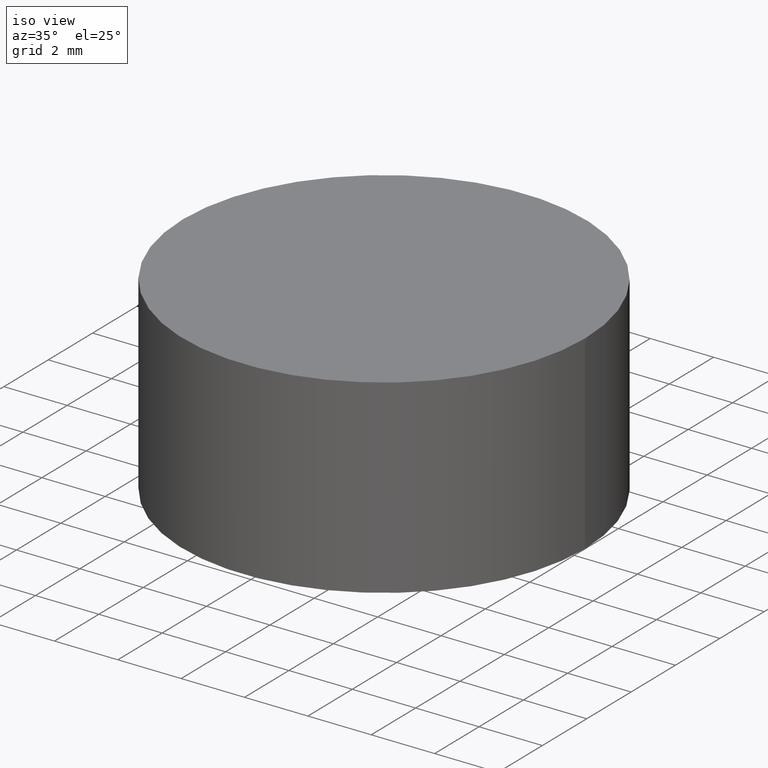
[diagram: clean part render]
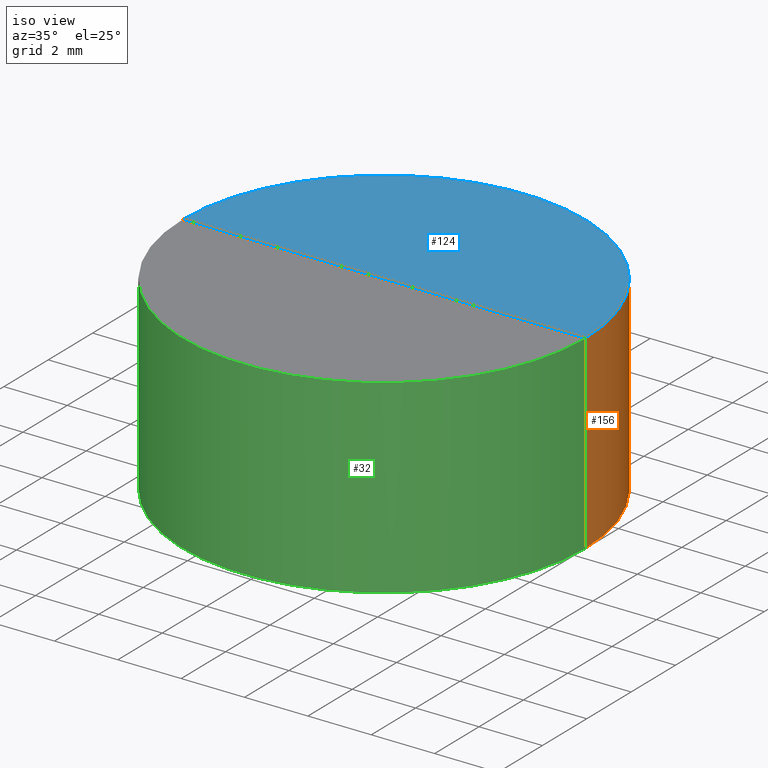
[diagram: same view with three faces highlighted in distinct colors, each labeled with its STEP entity id]
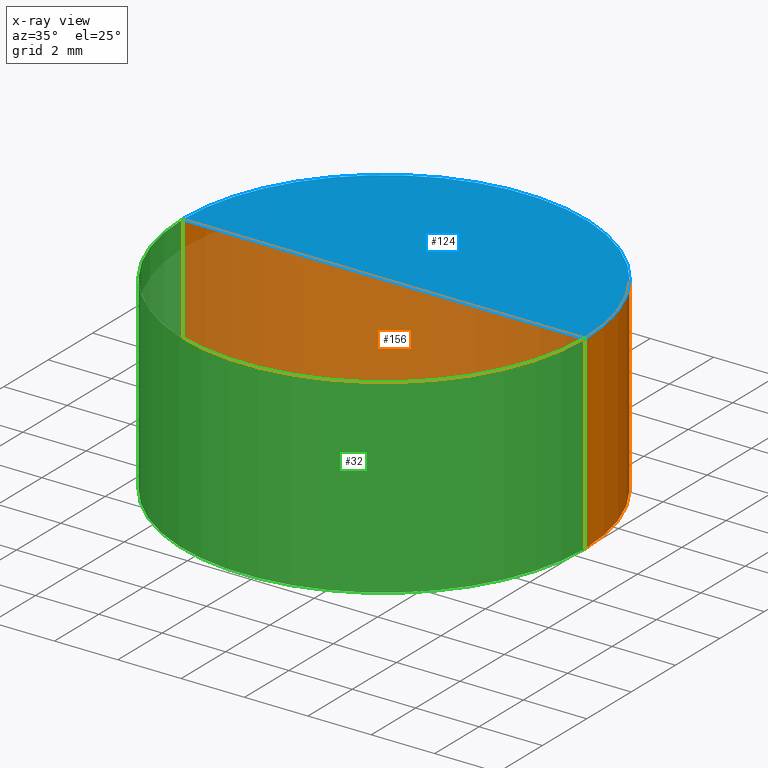
[diagram: x-ray of the same camera — body ghosted, the three highlighted faces saturated]
A machine part, iso view with three faces highlighted in distinct colors.
The next image is the same camera in x-ray (body ghosted, the three faces saturated) — at least one of them is partly hidden behind the body in this view.
Their STEP definitions:

[orange] entity #156 — the highlighted cylindrical surface (partial cylindrical patch) has radius 6.35 mm, axis along (-0, -0, -1).
#2 = DIRECTION ( 'NONE',  ( -0.000000000000000000, -0.000000000000000000, -1.000000000000000000 ) ) ;
#4 = CARTESIAN_POINT ( 'NONE',  ( -6.349999999999999645, 0.000000000000000000, 6.000000000000000000 ) ) ;
#15 = DIRECTION ( 'NONE',  ( -0.000000000000000000, -0.000000000000000000, -1.000000000000000000 ) ) ;
#18 = LINE ( 'NONE', #4, #100 ) ;
#25 = DIRECTION ( 'NONE',  ( 1.000000000000000000, 0.000000000000000000, 0.000000000000000000 ) ) ;
#30 = DIRECTION ( 'NONE',  ( 1.000000000000000000, 0.000000000000000000, 0.000000000000000000 ) ) ;
#37 = VERTEX_POINT ( 'NONE', #40 ) ;
#40 = CARTESIAN_POINT ( 'NONE',  ( 6.349999999999999645, 7.776507174585692163E-16, 0.000000000000000000 ) ) ;
#41 = DIRECTION ( 'NONE',  ( -0.000000000000000000, -0.000000000000000000, -1.000000000000000000 ) ) ;
#45 = CARTESIAN_POINT ( 'NONE',  ( -6.350000000023290347, 0.000000000000000000, 5.999999999999783284 ) ) ;
#47 = EDGE_CURVE ( 'NONE', #126, #37, #62, .T. ) ;
#49 = ORIENTED_EDGE ( 'NONE', *, *, #168, .T. ) ;
#54 = ORIENTED_EDGE ( 'NONE', *, *, #47, .T. ) ;
#62 = LINE ( 'NONE', #180, #144 ) ;
#63 = AXIS2_PLACEMENT_3D ( 'NONE', #105, #108, #25 ) ;
#67 = EDGE_CURVE ( 'NONE', #37, #122, #107, .T. ) ;
#68 = VERTEX_POINT ( 'NONE', #45 ) ;
#92 = AXIS2_PLACEMENT_3D ( 'NONE', #171, #15, #30 ) ;
#95 = CARTESIAN_POINT ( 'NONE',  ( 0.000000000000000000, 0.000000000000000000, 6.000000000000000000 ) ) ;
#100 = VECTOR ( 'NONE', #142, 1000.000000000000000 ) ;
#101 = ORIENTED_EDGE ( 'NONE', *, *, #67, .T. ) ;
#105 = CARTESIAN_POINT ( 'NONE',  ( 0.000000000000000000, 0.000000000000000000, 0.000000000000000000 ) ) ;
#107 = CIRCLE ( 'NONE', #63, 6.349999999999999645 ) ;
#108 = DIRECTION ( 'NONE',  ( 0.000000000000000000, 0.000000000000000000, 1.000000000000000000 ) ) ;
#119 = DIRECTION ( 'NONE',  ( -1.000000000000000000, 0.000000000000000000, 0.000000000000000000 ) ) ;
#120 = CYLINDRICAL_SURFACE ( 'NONE', #136, 6.349999999999999645 ) ;
#122 = VERTEX_POINT ( 'NONE', #201 ) ;
#126 = VERTEX_POINT ( 'NONE', #198 ) ;
#136 = AXIS2_PLACEMENT_3D ( 'NONE', #95, #2, #119 ) ;
#142 = DIRECTION ( 'NONE',  ( -0.000000000000000000, -0.000000000000000000, -1.000000000000000000 ) ) ;
#143 = EDGE_CURVE ( 'NONE', #68, #122, #18, .T. ) ;
#144 = VECTOR ( 'NONE', #41, 1000.000000000000000 ) ;
#156 = ADVANCED_FACE ( 'NONE', ( #169 ), #120, .T. ) ;
#158 = EDGE_LOOP ( 'NONE', ( #49, #54, #101, #162 ) ) ;
#162 = ORIENTED_EDGE ( 'NONE', *, *, #143, .F. ) ;
#168 = EDGE_CURVE ( 'NONE', #68, #126, #182, .T. ) ;
#169 = FACE_OUTER_BOUND ( 'NONE', #158, .T. ) ;
#171 = CARTESIAN_POINT ( 'NONE',  ( 3.694961003830599111E-13, 0.000000000000000000, 5.999999999999783284 ) ) ;
#180 = CARTESIAN_POINT ( 'NONE',  ( 6.349999999999999645, 7.776507174585692163E-16, 6.000000000000000000 ) ) ;
#182 = CIRCLE ( 'NONE', #92, 6.350000000023658941 ) ;
#198 = CARTESIAN_POINT ( 'NONE',  ( 6.350000000024028424, 7.776507174615119633E-16, 5.999999999999783284 ) ) ;
#201 = CARTESIAN_POINT ( 'NONE',  ( -6.349999999999999645, 0.000000000000000000, 0.000000000000000000 ) ) ;

[blue] entity #124 — the highlighted spherical surface has radius 3000 mm.
#15 = DIRECTION ( 'NONE',  ( -0.000000000000000000, -0.000000000000000000, -1.000000000000000000 ) ) ;
#20 = ORIENTED_EDGE ( 'NONE', *, *, #44, .T. ) ;
#29 = CARTESIAN_POINT ( 'NONE',  ( 5.531931202551628353E-13, 0.000000000000000000, 5.993279575805754433 ) ) ;
#30 = DIRECTION ( 'NONE',  ( 1.000000000000000000, 0.000000000000000000, 0.000000000000000000 ) ) ;
#34 = ORIENTED_EDGE ( 'NONE', *, *, #168, .F. ) ;
#44 = EDGE_CURVE ( 'NONE', #68, #73, #173, .T. ) ;
#45 = CARTESIAN_POINT ( 'NONE',  ( -6.350000000023290347, 0.000000000000000000, 5.999999999999783284 ) ) ;
#60 = SPHERICAL_SURFACE ( 'NONE', #165, 3000.000000000000000 ) ;
#61 = AXIS2_PLACEMENT_3D ( 'NONE', #82, #185, #139 ) ;
#68 = VERTEX_POINT ( 'NONE', #45 ) ;
#73 = VERTEX_POINT ( 'NONE', #29 ) ;
#79 = FACE_OUTER_BOUND ( 'NONE', #189, .T. ) ;
#82 = CARTESIAN_POINT ( 'NONE',  ( 3.694961003830599111E-13, 0.000000000000000000, 3005.993279575805900 ) ) ;
#86 = AXIS2_PLACEMENT_3D ( 'NONE', #150, #199, #184 ) ;
#87 = ORIENTED_EDGE ( 'NONE', *, *, #183, .F. ) ;
#92 = AXIS2_PLACEMENT_3D ( 'NONE', #171, #15, #30 ) ;
#123 = CIRCLE ( 'NONE', #61, 3000.000000000000455 ) ;
#124 = ADVANCED_FACE ( 'NONE', ( #79 ), #60, .F. ) ;
#126 = VERTEX_POINT ( 'NONE', #198 ) ;
#139 = DIRECTION ( 'NONE',  ( 0.000000000000000000, 0.000000000000000000, 1.000000000000000000 ) ) ;
#140 = CARTESIAN_POINT ( 'NONE',  ( 3.694961003830599111E-13, 0.000000000000000000, 3005.993279575805900 ) ) ;
#150 = CARTESIAN_POINT ( 'NONE',  ( 3.694961003830599111E-13, 0.000000000000000000, 3005.993279575805900 ) ) ;
#151 = DIRECTION ( 'NONE',  ( 0.000000000000000000, -1.000000000000000000, -0.000000000000000000 ) ) ;
#154 = DIRECTION ( 'NONE',  ( 1.000000000000000000, 0.000000000000000000, 0.000000000000000000 ) ) ;
#165 = AXIS2_PLACEMENT_3D ( 'NONE', #140, #151, #154 ) ;
#168 = EDGE_CURVE ( 'NONE', #68, #126, #182, .T. ) ;
#171 = CARTESIAN_POINT ( 'NONE',  ( 3.694961003830599111E-13, 0.000000000000000000, 5.999999999999783284 ) ) ;
#173 = CIRCLE ( 'NONE', #86, 3000.000000000000000 ) ;
#182 = CIRCLE ( 'NONE', #92, 6.350000000023658941 ) ;
#183 = EDGE_CURVE ( 'NONE', #126, #73, #123, .T. ) ;
#184 = DIRECTION ( 'NONE',  ( 1.000000000000000000, 1.224646799147353207E-16, 0.000000000000000000 ) ) ;
#185 = DIRECTION ( 'NONE',  ( 0.000000000000000000, 1.000000000000000000, -0.000000000000000000 ) ) ;
#189 = EDGE_LOOP ( 'NONE', ( #34, #20, #87 ) ) ;
#198 = CARTESIAN_POINT ( 'NONE',  ( 6.350000000024028424, 7.776507174615119633E-16, 5.999999999999783284 ) ) ;
#199 = DIRECTION ( 'NONE',  ( 1.224646799147353207E-16, -1.000000000000000000, 0.000000000000000000 ) ) ;

[green] entity #32 — the highlighted cylindrical surface (partial cylindrical patch) has radius 6.35 mm, axis along (-0, -0, -1).
#4 = CARTESIAN_POINT ( 'NONE',  ( -6.349999999999999645, 0.000000000000000000, 6.000000000000000000 ) ) ;
#11 = FACE_OUTER_BOUND ( 'NONE', #174, .T. ) ;
#13 = CIRCLE ( 'NONE', #17, 6.349999999999999645 ) ;
#17 = AXIS2_PLACEMENT_3D ( 'NONE', #106, #133, #57 ) ;
#18 = LINE ( 'NONE', #4, #100 ) ;
#26 = EDGE_CURVE ( 'NONE', #122, #37, #13, .T. ) ;
#27 = DIRECTION ( 'NONE',  ( -0.000000000000000000, -0.000000000000000000, -1.000000000000000000 ) ) ;
#32 = ADVANCED_FACE ( 'NONE', ( #11 ), #116, .T. ) ;
#33 = CIRCLE ( 'NONE', #155, 6.350000000023658941 ) ;
#37 = VERTEX_POINT ( 'NONE', #40 ) ;
#40 = CARTESIAN_POINT ( 'NONE',  ( 6.349999999999999645, 7.776507174585692163E-16, 0.000000000000000000 ) ) ;
#41 = DIRECTION ( 'NONE',  ( -0.000000000000000000, -0.000000000000000000, -1.000000000000000000 ) ) ;
#45 = CARTESIAN_POINT ( 'NONE',  ( -6.350000000023290347, 0.000000000000000000, 5.999999999999783284 ) ) ;
#47 = EDGE_CURVE ( 'NONE', #126, #37, #62, .T. ) ;
#56 = ORIENTED_EDGE ( 'NONE', *, *, #143, .T. ) ;
#57 = DIRECTION ( 'NONE',  ( 1.000000000000000000, 0.000000000000000000, 0.000000000000000000 ) ) ;
#62 = LINE ( 'NONE', #180, #144 ) ;
#68 = VERTEX_POINT ( 'NONE', #45 ) ;
#84 = ORIENTED_EDGE ( 'NONE', *, *, #47, .F. ) ;
#91 = CARTESIAN_POINT ( 'NONE',  ( 0.000000000000000000, 0.000000000000000000, 6.000000000000000000 ) ) ;
#93 = DIRECTION ( 'NONE',  ( -1.000000000000000000, 0.000000000000000000, 0.000000000000000000 ) ) ;
#100 = VECTOR ( 'NONE', #142, 1000.000000000000000 ) ;
#106 = CARTESIAN_POINT ( 'NONE',  ( 0.000000000000000000, 0.000000000000000000, 0.000000000000000000 ) ) ;
#111 = EDGE_CURVE ( 'NONE', #126, #68, #33, .T. ) ;
#116 = CYLINDRICAL_SURFACE ( 'NONE', #141, 6.349999999999999645 ) ;
#122 = VERTEX_POINT ( 'NONE', #201 ) ;
#126 = VERTEX_POINT ( 'NONE', #198 ) ;
#133 = DIRECTION ( 'NONE',  ( 0.000000000000000000, 0.000000000000000000, 1.000000000000000000 ) ) ;
#137 = DIRECTION ( 'NONE',  ( 1.000000000000000000, 0.000000000000000000, 0.000000000000000000 ) ) ;
#141 = AXIS2_PLACEMENT_3D ( 'NONE', #91, #148, #93 ) ;
#142 = DIRECTION ( 'NONE',  ( -0.000000000000000000, -0.000000000000000000, -1.000000000000000000 ) ) ;
#143 = EDGE_CURVE ( 'NONE', #68, #122, #18, .T. ) ;
#144 = VECTOR ( 'NONE', #41, 1000.000000000000000 ) ;
#148 = DIRECTION ( 'NONE',  ( -0.000000000000000000, -0.000000000000000000, -1.000000000000000000 ) ) ;
#155 = AXIS2_PLACEMENT_3D ( 'NONE', #166, #27, #137 ) ;
#157 = ORIENTED_EDGE ( 'NONE', *, *, #26, .T. ) ;
#166 = CARTESIAN_POINT ( 'NONE',  ( 3.694961003830599111E-13, 0.000000000000000000, 5.999999999999783284 ) ) ;
#174 = EDGE_LOOP ( 'NONE', ( #84, #192, #56, #157 ) ) ;
#180 = CARTESIAN_POINT ( 'NONE',  ( 6.349999999999999645, 7.776507174585692163E-16, 6.000000000000000000 ) ) ;
#192 = ORIENTED_EDGE ( 'NONE', *, *, #111, .T. ) ;
#198 = CARTESIAN_POINT ( 'NONE',  ( 6.350000000024028424, 7.776507174615119633E-16, 5.999999999999783284 ) ) ;
#201 = CARTESIAN_POINT ( 'NONE',  ( -6.349999999999999645, 0.000000000000000000, 0.000000000000000000 ) ) ;